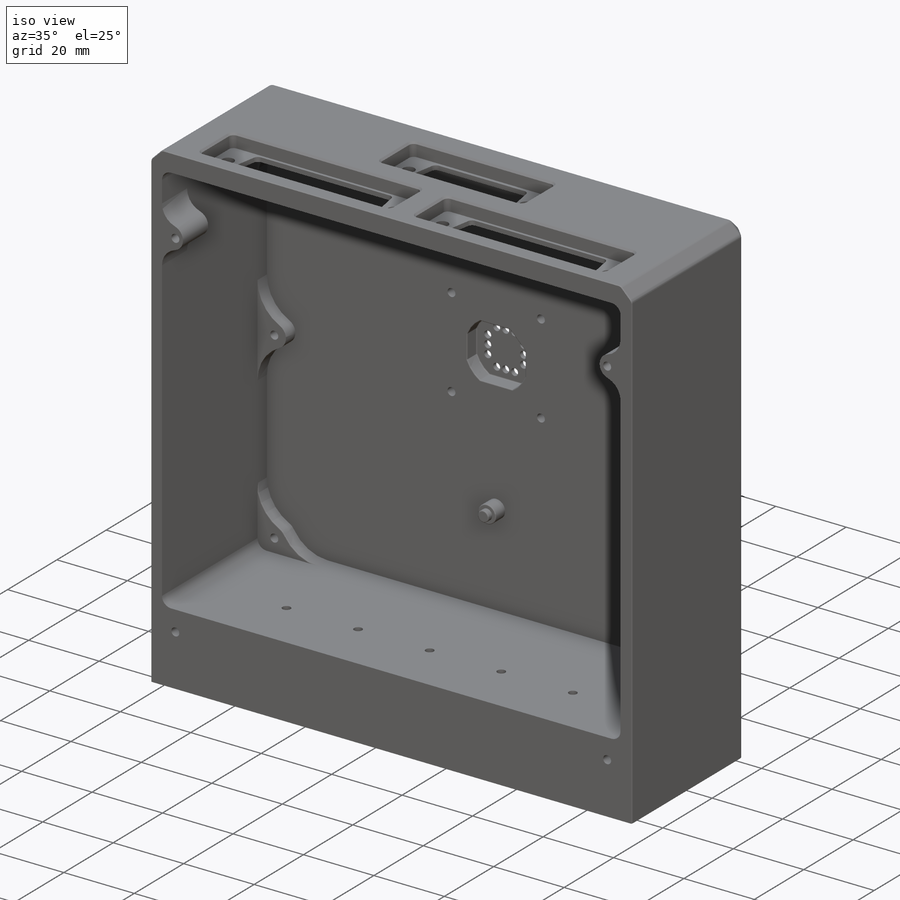
[diagram: iso view]
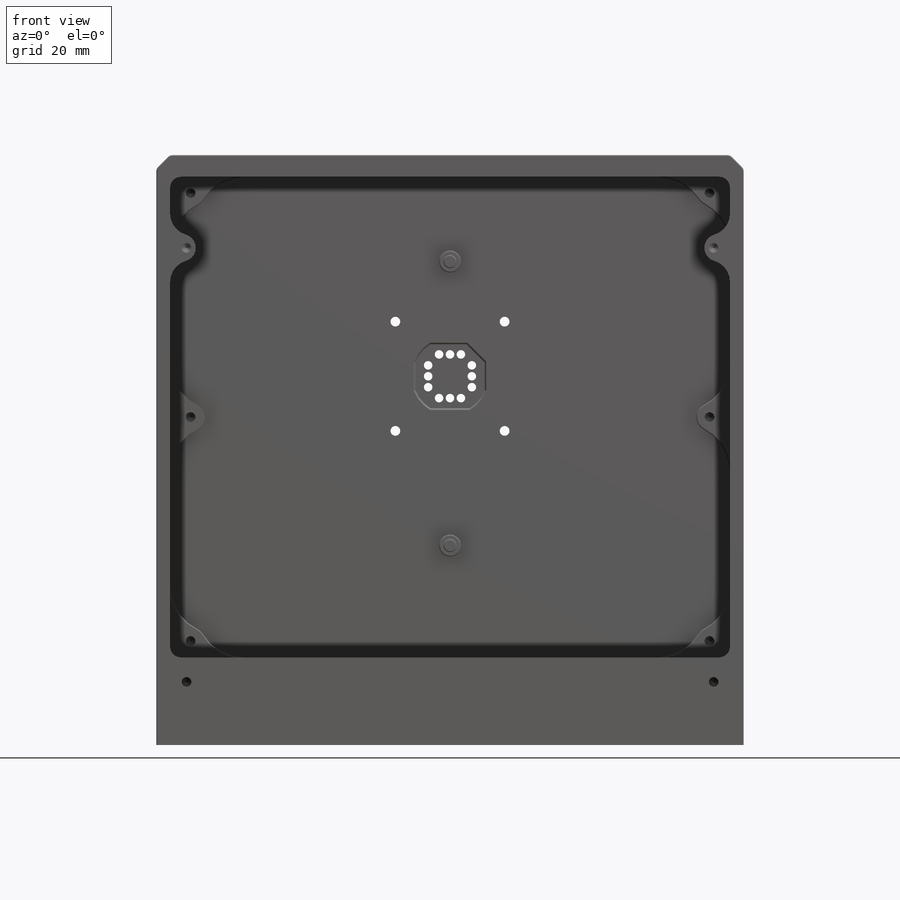
[diagram: front view]
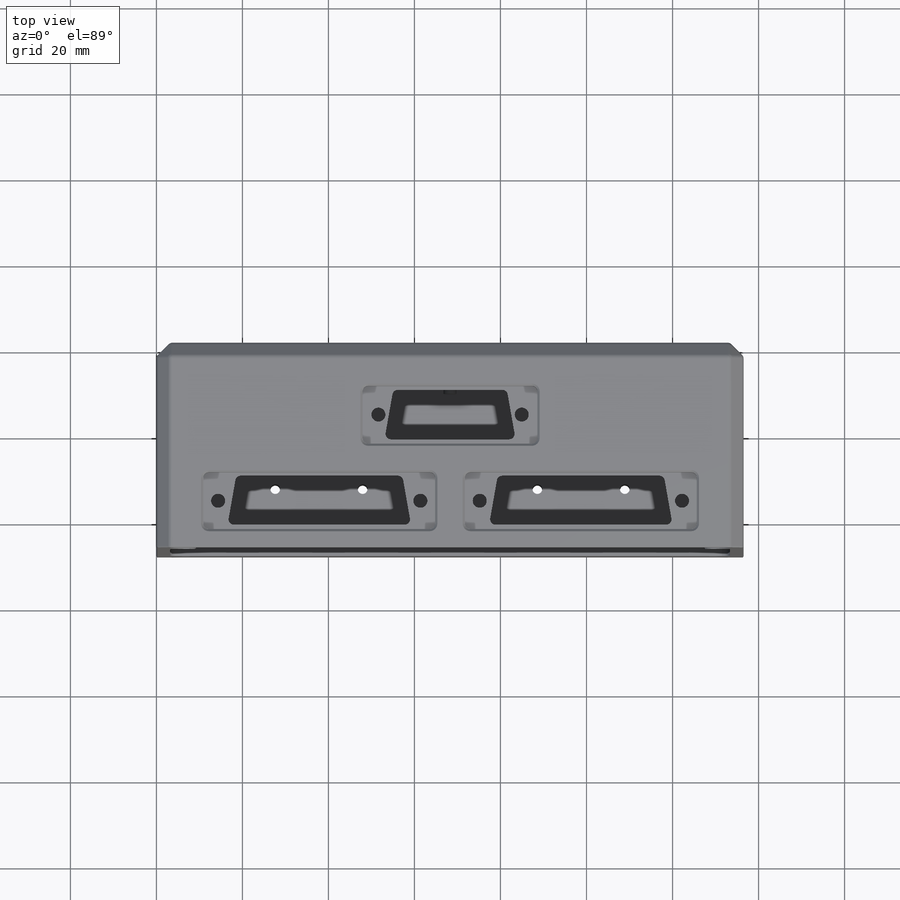
[diagram: top view]
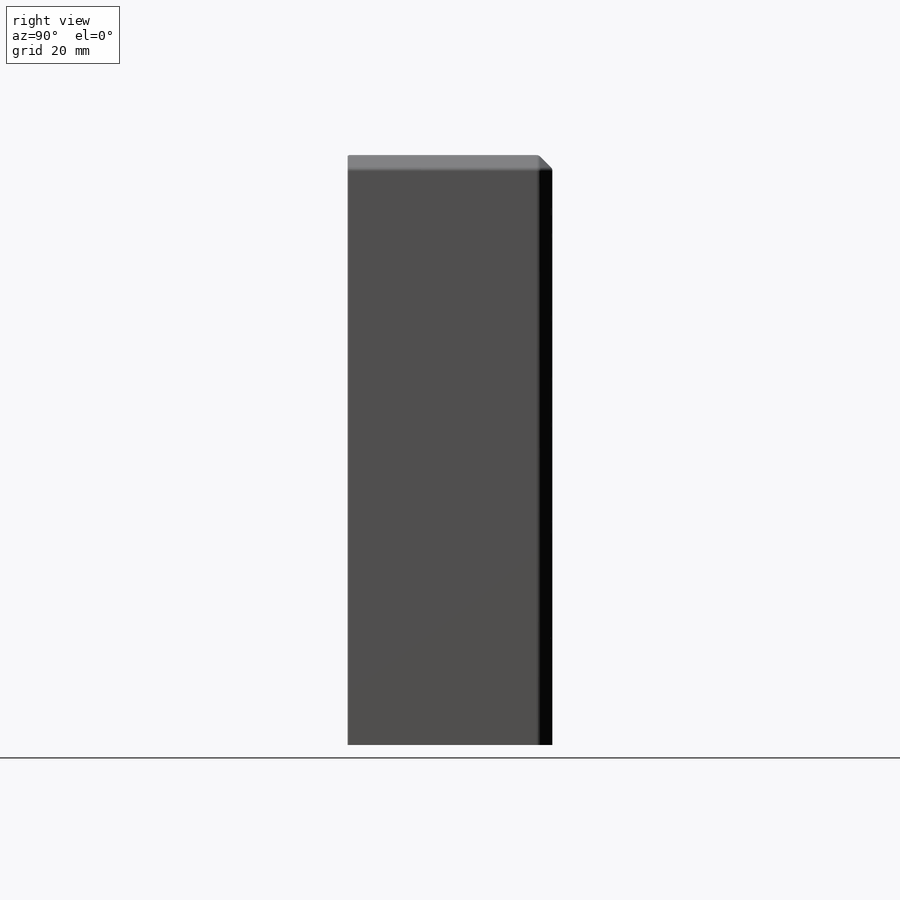
[diagram: right view]
SOLIDWORKS PART (.sldprt)
format: sldprt  version: not decoded by parser v0  size: 3,452,928 bytes
history: native  units: mm
features: sketch x27, fillet x16, thread x9, hole x8, cut_extrude x6, extrude x5, plane x4, chamfer x3, material x1, shell x1 + 1 further entry (+13 scaffold rows collapsed)
feature tree (94):
  scaffold x13  (default folders/planes/origin — collapsed)
  material  "Material <not specified>"
  "Origin"  ID=-1
  sketch  "Sketch1"  dims[D1=137.16mm D2=136.525mm]
  extrude  "Boss-Extrude1"  Depth=47.625mm
  shell  "Shell1"  Thickness=5.08mm
  chamfer  "Chamfer1"  Distance=3.175mm Angle=45deg
  fillet  "Fillet9"  Radius=1.27mm
  plane  "Plane1"  Offset=36.719688mm
  hole  "1/4-20 Tapped Hole1"  Diameter=5.1054mm Depth=14.732mm
  sketch  "Sketch3"  dims[c1.D1=25.4mm c1.D2=25.4mm c1.D3=25.4mm c1.D4=25.4mm c2.D1=42.8625mm c2.D2=42.8625mm c2.D5=50.8mm]
  sketch  "Sketch2"  dims[hole-wizard template sketch: 47 standard entries collapsed; hole parameters kept: c15.Tap Drill Depth=14.732mm c15.D3=~14.816244mm c15.Drill Angle=118.0deg]
  sketch  "Sketch36"  dims[D5=6.35mm D6=6.35mm D1=21.59mm D2=21.59mm D3=5.969mm D4=5.969mm]
  extrude  "Boss-Extrude5"  Depth=10.16mm
  fillet  "Fillet20"  Radius=5.08mm
  fillet  "Fillet21"  Radius=5.08mm
  hole  "#4-40 Tapped Hole1"  Diameter=2.2606mm Depth=8.89mm
  sketch  "Sketch5"  dims[c1.D1=21.59mm c1.D2=3.175mm c1.D3=21.59mm c1.D4=6.985mm c1.D5=6.985mm c1.D6=42.8625mm c1.D7=162.56mm c1.D8=57.15mm c1.D9=50.8mm c1.D10=3.175mm c1.D11=57.15mm c1.D12=~2.263176mm c2.D8=~2.263176mm c2.D7=33.655mm c3.D8=146.05mm c3.D9=5.715mm c3.D10=1.905mm c4.D8=3.175mm c4.D10=5.715mm c4.D11=6.985mm c4.D12=6.985mm c4.D13=3.175mm c4.D14=3.175mm c4.D15=33.655mm c4.D16=24.4475mm c4.D17=39.6875mm c4.D6=24.4475mm c4.D2=14.605mm]
  sketch  "Sketch4"  dims[hole-wizard template sketch: 50 standard entries collapsed; hole parameters above]
  plane  "Plane2"
  fillet  "Fillet4"  Radius=2.54mm
  sketch  "Sketch54"  dims[D1=1.9812mm D2=63.1825mm D3=80.645mm D4=5.0 D5=5.0]
  cut_extrude  "Cut-Extrude14"  [1 undecoded]
  hole  "#4-40 Tapped Hole2"  Diameter=2.2606mm Depth=7.5946mm
  sketch  "Sketch15"  dims[c1.D1=1.9812mm c1.D2=1.9812mm c1.D3=1.9812mm c1.D4=1.9812mm c1.D5=1.9812mm c1.D6=1.9812mm c1.D7=1.9812mm c1.D8=1.9812mm c2.D1=1.9812mm c2.D2=1.9812mm c2.D3=1.9812mm c2.D4=1.9812mm c2.D5=1.9812mm c2.D6=1.9812mm c2.D7=1.9812mm c2.D8=1.9812mm c3.D1=1.9812mm c3.D3=1.9812mm c3.D4=1.9812mm c3.D5=1.9812mm c3.D6=1.9812mm c3.D7=1.9812mm c3.D8=1.9812mm c4.D1=12.7mm c4.D2=12.7mm c4.D3=12.7mm c4.D4=12.7mm c4.D5=12.7mm c4.D6=12.7mm c4.D7=12.7mm c4.D8=12.7mm c5.D1=12.7mm c5.D2=12.7mm c5.D3=12.7mm c5.D4=12.7mm c5.D5=12.7mm c5.D6=12.7mm c5.D7=12.7mm c5.D8=12.7mm c6.D1=12.7mm c6.D2=12.7mm c6.D3=12.7mm c6.D4=12.7mm c6.D5=12.7mm c6.D6=12.7mm c6.D7=12.7mm c6.D8=12.7mm]
  sketch  "Sketch14"  dims[hole-wizard template sketch: 50 standard entries collapsed; hole parameters above]
  sketch  "Sketch16"  dims[c1.D1=6.35mm c1.D2=6.35mm c1.D3=6.35mm c1.D4=6.35mm c1.D5=6.35mm c1.D6=6.35mm c1.D7=3.81mm c1.D8=3.81mm c1.D9=44.45mm c1.D10=44.45mm c1.D11=44.45mm c1.D12=52.07mm c1.D13=104.14mm c1.D14=52.07mm c1.D15=24.13mm c2.D7=24.13mm c2.D8=24.13mm c2.D9=120.65mm c2.D10=69.85mm c2.D11=~7.626451mm c2.D5=69.85mm c3.D11=52.07mm c3.D12=104.14mm c3.D13=~8.069577mm c3.D5=120.65mm c3.D10=6.35mm]
  extrude  "Boss-Extrude2"  Depth=3.81mm
  hole  "#4-40 Tapped Hole4"  Diameter=2.2606mm Depth=6.35mm
  sketch  "Sketch20"  dims[c1.D1=3.175mm c1.D2=3.81mm c1.D3=3.81mm c1.D4=120.65mm c2.D1=7.9375mm c2.D5=7.9375mm c2.D6=120.65mm c2.D7=120.65mm c2.D8=7.9375mm c2.D9=52.07mm c2.D10=52.07mm c2.D11=52.07mm c2.D12=52.07mm c3.D11=52.07mm c3.D12=52.07mm c3.D13=24.13mm c4.D11=52.07mm c4.D12=52.07mm]
  sketch  "Sketch19"  dims[hole-wizard template sketch: 47 standard entries collapsed; hole parameters kept: c15.Tap Drill Depth=6.35mm c15.D3=~14.816244mm c15.Drill Angle=118.0deg]
  thread  "Hole Thread7"  Diameter=5.6896mm  [1 undecoded]
  thread  "Hole Thread8"  Diameter=5.6896mm  [1 undecoded]
  thread  "Hole Thread9"  Diameter=5.6896mm  [1 undecoded]
  thread  "Hole Thread10"  Diameter=5.6896mm  [1 undecoded]
  thread  "Hole Thread11"  Diameter=5.6896mm  [1 undecoded]
  thread  "Hole Thread12"  Diameter=5.6896mm  [1 undecoded]
  sketch  "Sketch21"  dims[c1.D1=10.4648mm c1.D2=12.5476mm c1.D3=30.1625mm c1.D4=19.05mm c2.D1=12.5476mm c2.D2=10.4648mm c2.D3=68.2625mm c2.D5=19.05mm c3.D5=80.0deg c3.D6=19.05mm c4.D6=80.0deg c4.D1=20.32mm c4.D2=12.5476mm c5.D2=10.0deg c5.D4=~14.026306mm c6.D4=10.0deg c6.D2=12.5476mm c7.D2=80.0deg c7.D4=12.5476mm c8.D4=80.0deg c8.D5=11.5316mm c8.D6=10.9728mm c8.D1=~10.964883mm c9.D1=90.0deg c10.D1=11.5316mm c10.D5=~10.964883mm c11.D5=80.0deg c11.D6=~10.798302mm c12.D6=80.0deg c12.D7=~51.519137mm c13.D6=~10.798302mm c14.D6=80.0deg c14.D7=~10.964883mm c15.D7=80.0deg c15.D8=~10.798302mm c16.D8=80.0deg c16.D9=11.43mm c16.D10=11.43mm c16.D11=26.416mm c16.D12=38.6334mm c16.D13=38.6334mm c16.D14=12.7mm c16.D15=79.3496mm c17.D14=~43.923949mm c18.D14=90.0deg c19.D14=18.542mm c19.D16=30.9372mm c19.D17=30.9372mm c19.D18=13.208mm c19.D19=13.208mm c19.D20=18.542mm]
  cut_extrude  "Cut-Extrude10"  [1 undecoded]
  sketch  "Sketch22"  dims[c1.D1=13.4366mm c1.D2=30.1625mm c1.D3=40.64mm c1.D4=10.4648mm c2.D2=10.0838mm c2.D4=68.2625mm c2.D5=53.9242mm c2.D6=53.9242mm c2.D7=37.846mm c2.D8=98.679mm c2.D9=37.846mm c2.D10=36.7792mm c2.D11=13.208mm c2.D12=13.208mm c2.D13=36.7792mm c2.D14=20.32mm c2.D15=20.32mm]
  cut_extrude  "Cut-Extrude6"  Depth=3.81mm
  hole  "#4 Clearance Hole2"  Diameter=3.2639mm Depth=14.732mm
  sketch  "Sketch24"  dims[D1=33.3248mm D2=0.0mm D3=0.0mm D4=51.6001mm D5=47.0408mm D6=47.0408mm D7=14.3256mm D8=75.1586mm D9=36.7792mm D10=36.7792mm D11=36.7792mm D12=36.7792mm]
  sketch  "Sketch23"  dims[hole-wizard template sketch: 47 standard entries collapsed; hole parameters kept: c15.Hole Depth=14.732mm c15.D3=~14.816244mm c15.Drill Angle=118.0deg]
  fillet  "Fillet5"  Radius=1.27mm
  sketch  "Sketch32"  dims[c1.D1=5.08mm c1.D2=5.08mm c1.D3=68.2625mm c1.D4=68.2625mm c1.D5=~23.196804mm c1.D6=46.355mm c1.D7=~113.963196mm c2.D5=112.395mm]
  extrude  "Boss-Extrude3"  Depth=3.81mm
  sketch  "Sketch33"  dims[D1=3.048mm D2=3.048mm D3=112.395mm D4=68.2625mm D5=68.2625mm D6=46.355mm]
  extrude  "Boss-Extrude4"  Depth=1.524mm
  fillet  "Fillet8"  Radius=11.1252mm
  sketch  "Sketch35"  dims[c1.D2=1.9812mm c1.D3=1.9812mm c1.D4=1.9812mm c1.D5=1.9812mm c2.D3=1.9812mm c2.D4=8.89mm c3.D3=1.9812mm c3.D1=86.106mm c3.D2=2.54mm c4.D3=15.24mm c4.D4=6.35mm c4.D5=1.27mm c4.D6=1.27mm c4.D1=8.0331mm c5.D1=225.0deg c5.D2=5.08mm c5.D4=5.08mm c6.D2=7.62mm c6.D3=7.62mm c6.D4=7.62mm c6.D5=7.62mm c6.D6=~10.977468mm c7.D6=220.0deg c8.D6=~6.028131mm c8.D2=11.4564mm c8.D3=7.62mm c9.D2=7.62mm c9.D4=7.62mm c9.D5=15.24mm c10.D5=90.0deg c11.D5=7.62mm c11.D4=8.5344mm c12.D5=8.5344mm c12.D6=~8.579754mm c12.D2=5.08mm c12.D3=5.08mm c13.D5=7.62mm c13.D6=7.62mm c13.D7=8.255mm c13.D8=8.255mm c13.D2=5.08mm c13.D3=5.08mm]
  cut_extrude  "Cut-Extrude15"  Depth=3.81mm
  fillet  "Fillet11"  Radius=0.254mm
  fillet  "Fillet12"  Radius=0.254mm
  fillet  "Fillet13"  Radius=0.254mm
  fillet  "Fillet14"  Radius=0.254mm
  fillet  "Fillet15"  Radius=0.254mm
  fillet  "Fillet17"  Radius=0.254mm
  fillet  "Fillet18"  Radius=0.254mm
  fillet  "Fillet19"  Radius=0.254mm
  sketch  "Sketch37"  dims[c1.D1=1.9812mm c1.D2=1.9812mm c1.D3=20.2692mm c1.D4=22.9108mm c1.D6=1.9812mm c1.D7=1.9812mm c1.D9=10.1346mm c2.D1=2.54mm c2.D2=2.54mm c2.D5=2.5908mm c2.D6=2.5908mm c3.D1=2.5908mm c3.D2=2.5908mm c3.D5=2.5908mm c3.D6=1.2954mm c3.D7=1.2954mm c3.D8=1.2954mm]
  cut_extrude  "Cut-Extrude16"  Depth=1.3208mm
  hole  "#4-40 Tapped Hole5"  [1 undecoded]
  sketch  "Sketch39"  dims[D1=15.5702mm D2=15.5702mm D3=15.5702mm D4=12.7mm D5=12.7mm D6=30.1625mm]
  thread  "Hole Thread14"  Diameter=2.8448mm  [1 undecoded]
  sketch  "Sketch38"  dims[hole-wizard template sketch: 60 standard entries collapsed; hole parameters kept: c18.Thru Tap Drill Depth=20.32mm]
  thread  "Hole Thread16"  Diameter=2.8448mm  [1 undecoded]
  thread  "Hole Thread17"  Diameter=2.8448mm  [1 undecoded]
  fillet  "Fillet25"  Radius=1.27mm
  chamfer  "Chamfer3"  Distance=0.508mm Angle=45deg
  hole  "#4 Clearance Hole3"  Diameter=4.2164mm Depth=14.732mm
  sketch  "Sketch45"  dims[D1=19.3802mm D2=60.96mm]
  sketch  "Sketch44"  dims[hole-wizard template sketch: 46 standard entries collapsed; hole parameters kept: c15.Hole Dia.=4.2164mm c15.Hole Depth=14.732mm c15.D3=~14.816244mm c15.Drill Angle=118.0deg]
  chamfer  "Chamfer4"  Distance=0.1778mm Angle=60deg
  plane  "Plane3"
  plane  "Plane4"
  sketch  "Sketch49"
  cut_extrude  "Cut-Extrude13"  Depth=0.254mm
  fillet  "Fillet26"  Radius=0.254mm
  hole  "#4-40 Tapped Hole6"  Diameter=2.2606mm Depth=20.32mm
  sketch  "Sketch56"  dims[D1=27.6225mm D2=20.32mm D3=20.32mm D4=20.32mm D5=20.32mm D6=27.6225mm D7=15.5702mm D8=15.5702mm D9=15.5702mm D10=15.5702mm D11=15.5702mm]
  sketch  "Sketch55"  dims[hole-wizard template sketch: 60 standard entries collapsed; hole parameters kept: c18.Thru Tap Drill Depth=20.32mm]
decode coverage: 71 of 75 modeling features carry decoded parameters; 1 rows unclassified (native names shown)
note: ~ marks probable driven/reference dimensions
note: 12 parameter values undecoded
summary: Diameter pulled from absorbed wizard sketch | no parameter record found for 3 features
note: suppression state not decoded; provenance and decode notes live in map.json
